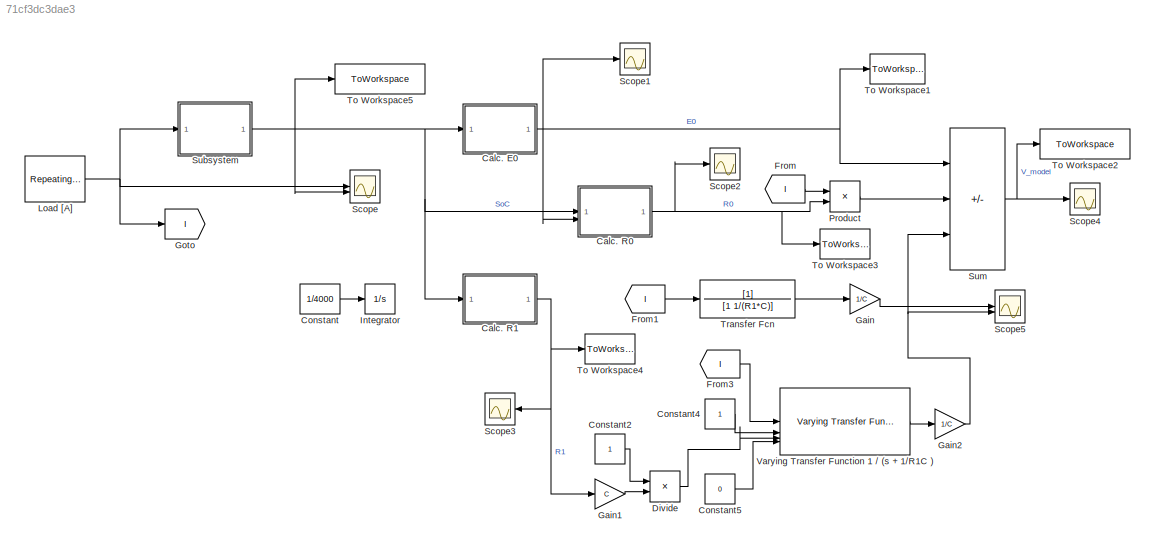
MODEL slx_71cf3dc3dae3
KIND model
CONFIG AbsTol = auto
CONFIG EnableMultiTasking = off
CONFIG FixedStep = 0.2
CONFIG MaxStep = auto
CONFIG MinStep = auto
CONFIG RelTol = 1e-3
CONFIG SampleTimeConstraint = Unconstrained
CONFIG SolverName = FixedStepAuto
CONFIG StartTime = 0.0
CONFIG StopTime = 4000.0
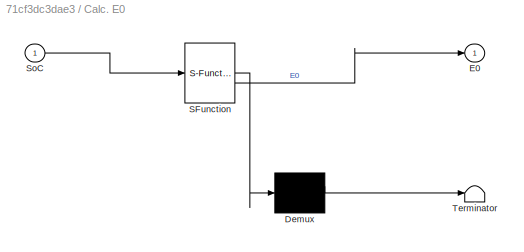
BLOCK [SubSystem] Calc. E0
  ErrorFcn = Stateflow.Translate.translate
  LibrarySourceBlock = simulink/User-Defined\nFunctions/MATLAB Function
  PermitHierarchicalResolution = ExplicitOnly
  SFBlockType = MATLAB Function
  TreatAsAtomicUnit = on
BLOCK [Demux] Calc. E0/ Demux 
  Outputs = 1
BLOCK [S-Function] Calc. E0/ SFunction 
  EnableBusSupport = on
  FunctionName = sf_sfun
  PortCounts = [1 2]
  SFcnIsStateOwnerBlock = off
  SFunctionDeploymentMode = off
  Tag = Stateflow S-Function 2
BLOCK [Terminator] Calc. E0/ Terminator 
BLOCK [Outport] Calc. E0/E0
BLOCK [Inport] Calc. E0/SoC
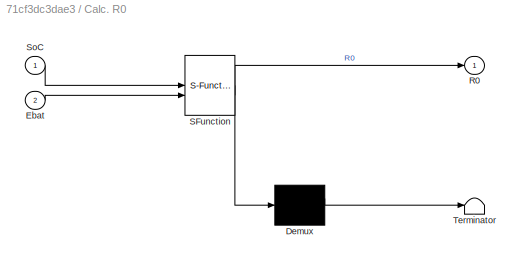
BLOCK [SubSystem] Calc. R0
  ErrorFcn = Stateflow.Translate.translate
  LibrarySourceBlock = simulink/User-Defined\nFunctions/MATLAB Function
  PermitHierarchicalResolution = ExplicitOnly
  SFBlockType = MATLAB Function
  TreatAsAtomicUnit = on
BLOCK [Demux] Calc. R0/ Demux 
  Outputs = 1
BLOCK [S-Function] Calc. R0/ SFunction 
  EnableBusSupport = on
  FunctionName = sf_sfun
  PortCounts = [2 2]
  SFcnIsStateOwnerBlock = off
  SFunctionDeploymentMode = off
  Tag = Stateflow S-Function 1
BLOCK [Terminator] Calc. R0/ Terminator 
BLOCK [Inport] Calc. R0/Ebat
  Port = 2
BLOCK [Outport] Calc. R0/R0
BLOCK [Inport] Calc. R0/SoC
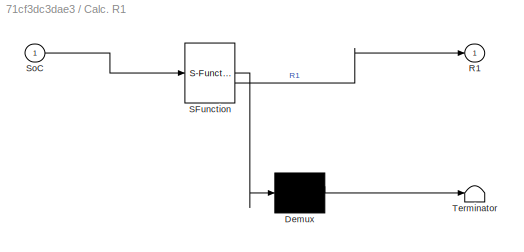
BLOCK [SubSystem] Calc. R1
  ErrorFcn = Stateflow.Translate.translate
  LibrarySourceBlock = simulink/User-Defined\nFunctions/MATLAB Function
  PermitHierarchicalResolution = ExplicitOnly
  SFBlockType = MATLAB Function
  TreatAsAtomicUnit = on
BLOCK [Demux] Calc. R1/ Demux 
  Outputs = 1
BLOCK [S-Function] Calc. R1/ SFunction 
  EnableBusSupport = on
  FunctionName = sf_sfun
  PortCounts = [1 2]
  SFcnIsStateOwnerBlock = off
  SFunctionDeploymentMode = off
  Tag = Stateflow S-Function 3
BLOCK [Terminator] Calc. R1/ Terminator 
BLOCK [Outport] Calc. R1/R1
BLOCK [Inport] Calc. R1/SoC
BLOCK [Constant] Constant
  Value = 1/4000
BLOCK [Constant] Constant2
BLOCK [Constant] Constant4
BLOCK [Constant] Constant5
  Value = 0
BLOCK [Product] Divide
  Inputs = */
BLOCK [From] From
  GotoTag = I
BLOCK [From] From1
  GotoTag = I
BLOCK [From] From3
  GotoTag = I
BLOCK [Gain] Gain
  Gain = 1/C
BLOCK [Gain] Gain1
  Gain = C
BLOCK [Gain] Gain2
  Gain = 1/C
BLOCK [Goto] Goto
  GotoTag = I
BLOCK [Integrator] Integrator
BLOCK [Reference] Load [A]  REF=simulink/Sources/Repeating
Sequence
  SourceBlock = simulink/Sources/Repeating\nSequence
  SourceType = Repeating table
BLOCK [Product] Product
BLOCK [Scope] Scope
  Floating = off
  NumInputPorts = 2
  ScopeSpecificationString = Simulink.scopes.TimeScopeBlockCfg('CurrentConfiguration', extmgr.ConfigurationSet(extmgr.Configuration('Core','General UI',true),extmgr.Configuration('Core','Source UI',true),extmgr.Configuration('Sources','WiredSimulink',true),extmgr.Configuration('Visuals','Time Domain',true,'SerializedDisplays',{struct('MinYLimReal','-0.325','MaxYLimReal','2.925','YLabelReal','','MinYLimMag','0.00000','MaxYLimM...<+2016ch>
BLOCK [Scope] Scope1
  Floating = off
  NumInputPorts = 1
  ScopeSpecificationString = Simulink.scopes.TimeScopeBlockCfg('CurrentConfiguration', extmgr.ConfigurationSet(extmgr.Configuration('Core','General UI',true),extmgr.Configuration('Core','Source UI',true),extmgr.Configuration('Sources','WiredSimulink',true,'DataLoggingVariableName','ScopeData1'),extmgr.Configuration('Visuals','Time Domain',true,'SerializedDisplays',{struct('MinYLimReal','3.67776','MaxYLimReal','4.22692','YLabe...<+1365ch>
BLOCK [Scope] Scope2
  Floating = off
  NumInputPorts = 1
  ScopeSpecificationString = Simulink.scopes.TimeScopeBlockCfg('CurrentConfiguration', extmgr.ConfigurationSet(extmgr.Configuration('Core','General UI',true),extmgr.Configuration('Core','Source UI',true),extmgr.Configuration('Sources','WiredSimulink',true,'DataLoggingVariableName','ScopeData2'),extmgr.Configuration('Visuals','Time Domain',true,'SerializedDisplays',{struct('MinYLimReal','0.07462','MaxYLimReal','0.07519','YLabe...<+1365ch>
BLOCK [Scope] Scope3
  Floating = off
  NameLocation = top
  NumInputPorts = 1
  ScopeSpecificationString = Simulink.scopes.TimeScopeBlockCfg('CurrentConfiguration', extmgr.ConfigurationSet(extmgr.Configuration('Core','General UI',true),extmgr.Configuration('Core','Source UI',true),extmgr.Configuration('Sources','WiredSimulink',true,'DataLoggingVariableName','ScopeData3'),extmgr.Configuration('Visuals','Time Domain',true,'SerializedDisplays',{struct('MinYLimReal','0.02195','MaxYLimReal','0.04247','YLabe...<+1365ch>
BLOCK [Scope] Scope4
  Floating = off
  NumInputPorts = 1
  ScopeSpecificationString = Simulink.scopes.TimeScopeBlockCfg('CurrentConfiguration', extmgr.ConfigurationSet(extmgr.Configuration('Core','General UI',true),extmgr.Configuration('Core','Source UI',true),extmgr.Configuration('Sources','WiredSimulink',true,'DataLoggingVariableName','ScopeData4'),extmgr.Configuration('Visuals','Time Domain',true,'SerializedDisplays',{struct('MinYLimReal','3.37836','MaxYLimReal','4.26018','YLabe...<+1407ch>
BLOCK [Scope] Scope5
  Floating = off
  NumInputPorts = 2
  ScopeSpecificationString = Simulink.scopes.TimeScopeBlockCfg('CurrentConfiguration', extmgr.ConfigurationSet(extmgr.Configuration('Core','General UI',true),extmgr.Configuration('Core','Source UI',true),extmgr.Configuration('Sources','WiredSimulink',true,'DataLoggingVariableName','ScopeData5'),extmgr.Configuration('Visuals','Time Domain',true,'SerializedDisplays',{struct('MinYLimReal','-0.01192','MaxYLimReal','0.1073','YLabe...<+1439ch>
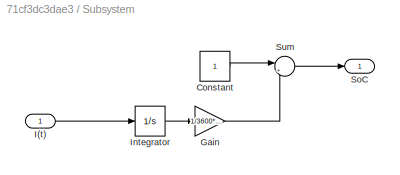
BLOCK [SubSystem] Subsystem
BLOCK [Constant] Subsystem/Constant
BLOCK [Gain] Subsystem/Gain
  Gain = 1/3600*1/2.6
BLOCK [Inport] Subsystem/I(t)
BLOCK [Integrator] Subsystem/Integrator
BLOCK [Outport] Subsystem/SoC
BLOCK [Sum] Subsystem/Sum
  Inputs = |+-
BLOCK [Sum] Sum
  IconShape = rectangular
  Inputs = +--
BLOCK [ToWorkspace] To Workspace1
  FixptAsFi = on
  MaxDataPoints = inf
  SampleTime = -1
  SaveFormat = Timeseries
  VariableName = E0
BLOCK [ToWorkspace] To Workspace2
  FixptAsFi = on
  MaxDataPoints = inf
  SampleTime = -1
  SaveFormat = Timeseries
  VariableName = V_model
BLOCK [ToWorkspace] To Workspace3
  FixptAsFi = on
  MaxDataPoints = inf
  SampleTime = -1
  SaveFormat = Timeseries
  VariableName = R0
BLOCK [ToWorkspace] To Workspace4
  FixptAsFi = on
  MaxDataPoints = inf
  SampleTime = -1
  SaveFormat = Timeseries
  VariableName = R1
BLOCK [ToWorkspace] To Workspace5
  FixptAsFi = on
  MaxDataPoints = inf
  SampleTime = -1
  SaveFormat = Timeseries
  VariableName = SoC
BLOCK [TransferFcn] Transfer Fcn
  Denominator = [1 1/(R1*C)]
BLOCK [Reference] Varying Transfer Function 1 // (s + 1//R1C )  REF=cstblocks/Linear Parameter Varying/Varying Transfer Function
  SourceBlock = cstblocks/Linear Parameter Varying/Varying Transfer Function
  SourceType = Varying Transfer Function
NET Calc. E0:1 -> Calc. R0:2, Scope1:1, Sum:1, To Workspace1:1
NET Calc. R0:1 -> Product:2, Scope2:1, To Workspace3:1
NET Calc. R1:1 -> Gain1:1, Scope3:1, To Workspace4:1
LINE Constant2:1 -> Divide:1
LINE Constant4:1 -> Varying Transfer Function 1 // (s + 1//R1C ):2
LINE Constant5:1 -> Varying Transfer Function 1 // (s + 1//R1C ):4
LINE Constant:1 -> Integrator:1
LINE Divide:1 -> Varying Transfer Function 1 // (s + 1//R1C ):3
LINE From1:1 -> Transfer Fcn:1
LINE From3:1 -> Varying Transfer Function 1 // (s + 1//R1C ):1
LINE From:1 -> Product:1
LINE Gain1:1 -> Divide:2
NET Gain2:1 -> Scope5:2, Sum:3
LINE Gain:1 -> Scope5:1
NET Load [A]:1 -> Goto:1, Scope:1, Subsystem:1
LINE Product:1 -> Sum:2
LINE Subsystem/Constant:1 -> Subsystem/Sum:1
LINE Subsystem/Gain:1 -> Subsystem/Sum:2
LINE Subsystem/I(t):1 -> Subsystem/Integrator:1
LINE Subsystem/Integrator:1 -> Subsystem/Gain:1
LINE Subsystem/Sum:1 -> Subsystem/SoC:1
NET Subsystem:1 -> Calc. E0:1, Calc. R0:1, Calc. R1:1, Scope:2, To Workspace5:1
NET Sum:1 -> Scope4:1, To Workspace2:1
LINE Transfer Fcn:1 -> Gain:1
LINE Varying Transfer Function 1 // (s + 1//R1C ):1 -> Gain2:1
note: NET lines group one-source signal fan-out (src -> all destinations, sorted); 1:1 wires keep LINE
CHART Calc. E0 states=1 transitions=1
  STATE_LABEL 'eML_blk_kernel()'
  STATE_LABEL 'SCRIPT:\nfunction E0 = fcn(SoC)\nebat0 = 3.288;\nebat1 = 1.813;\nebat2 = -4.205;\nebat3 = 5.306;\nebat4 = -2.03;\n\nE0 = ebat0 + ebat1.*SoC + ebat2.*SoC^2 + ebat3.*SoC^3 + ebat4.*SoC^4;\n'
CHART Calc. R1 states=1 transitions=1
  STATE_LABEL 'eML_blk_kernel()'
  STATE_LABEL 'SCRIPT:\nfunction R1 = fcn(SoC)\ndint0 = 0.065;\ndint1 = -0.057;\ndint2 = -0.029;\ndint3 = 0.161;\ndint4 = -0.116;\n\nR1 = dint0 + dint1.*SoC + dint2.*SoC^2 + dint3.*SoC^3 + dint4.*SoC^4;\n'
CHART Calc. R0 states=1 transitions=1
  STATE_LABEL 'eML_blk_kernel()'
  STATE_LABEL 'SCRIPT:\nfunction R0 = fcn(SoC,Ebat)\nrsint0 = 0.053;\nrsint1 = 0.005;\nrsint2 = 0.004;\nrsint3 = -2;\nrsint4 = 3.6;\n\nR0 = rsint0 + rsint1*Ebat + rsint2*exp(rsint3*(Ebat-rsint4));'
CHART  states=0 transitions=0
CHART  states=0 transitions=0
CHART  states=0 transitions=0
